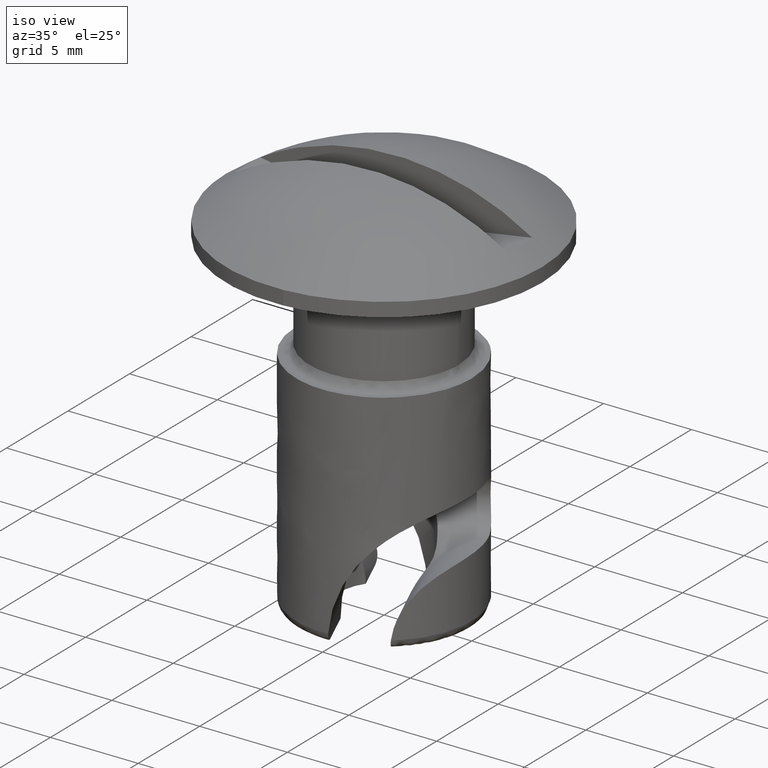
[diagram: clean part render]
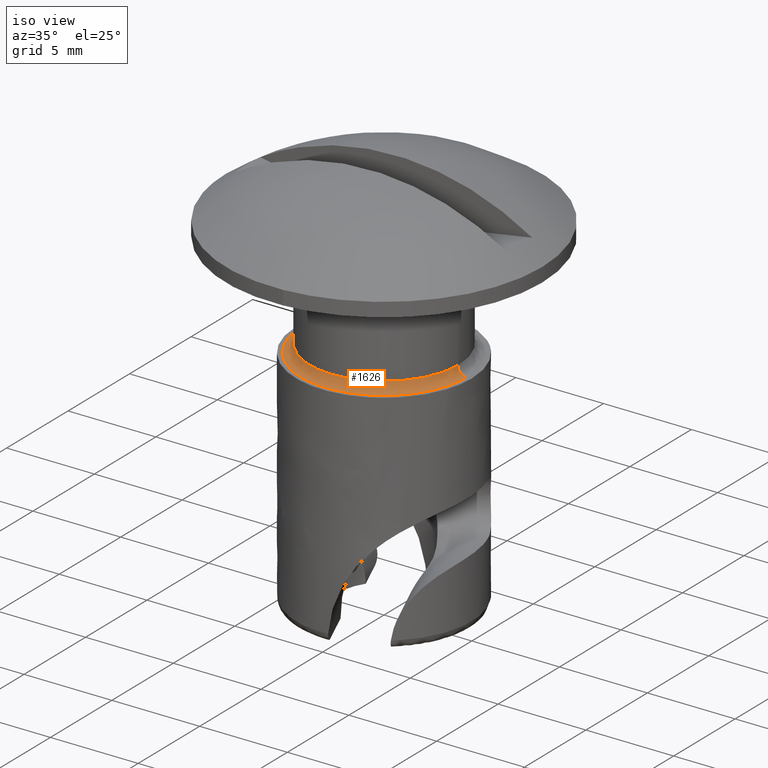
[diagram: same view with one face highlighted and labeled with its STEP entity id]
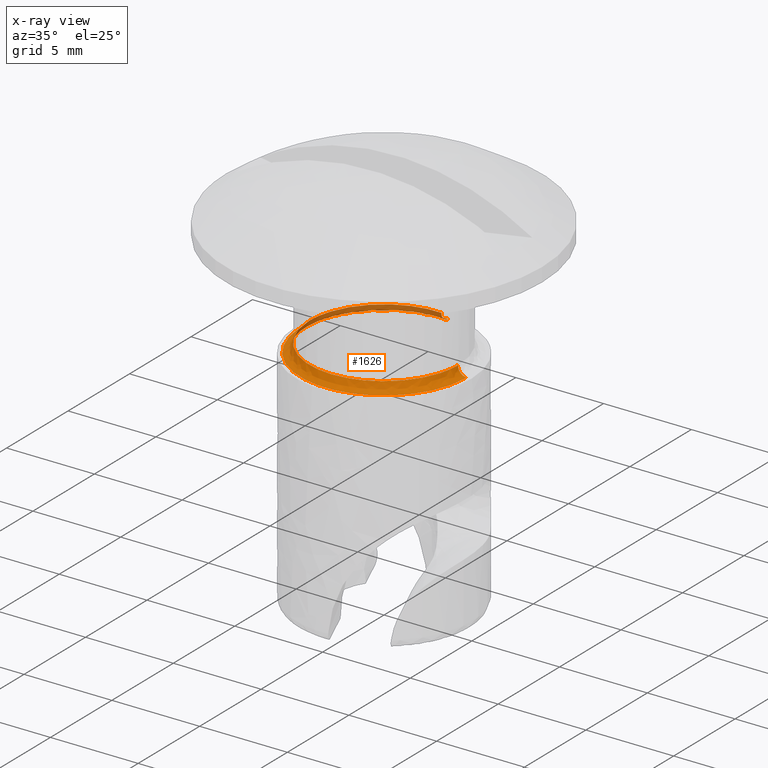
[diagram: x-ray of the same camera — body ghosted, the highlighted face saturated]
A machine part, iso view. The second image highlights one B-rep face of the part: STEP entity #1626.
The next image is the same camera in x-ray: the body ghosted, the highlighted face saturated — about 21% of this face is hidden behind the body in this view.
In plain terms, the highlighted face is a freeform B-spline surface patch.
Its self-contained STEP definition (entity closure, byte-faithful):
#66=CARTESIAN_POINT('',(-2.139199406614438,3.672373333245021,-5.499999999999996));
#67=VERTEX_POINT('',#66);
#68=CARTESIAN_POINT('',(-4.250000000000000,0.0,-5.500000000000000));
#69=VERTEX_POINT('',#68);
#70=CARTESIAN_POINT('',(-2.139199406614437,3.672373333245020,-5.499999999999997));
#71=CARTESIAN_POINT('',(-4.250000000000000,2.442807881396969,-5.500000000000000));
#72=CARTESIAN_POINT('',(-4.250000000000000,0.0,-5.500000000000000));
#80=(BOUNDED_CURVE()B_SPLINE_CURVE(2,(#70,#71,#72),.UNSPECIFIED.,.F.,.U.)B_SPLINE_CURVE_WITH_KNOTS((3,3),(0.335863057962902,0.500000000000000),.UNSPECIFIED.)CURVE()GEOMETRIC_REPRESENTATION_ITEM()RATIONAL_B_SPLINE_CURVE((0.867909378152065,0.807701610882229,1.0))REPRESENTATION_ITEM(''));
#81=EDGE_CURVE('',#67,#69,#80,.T.);
#83=CARTESIAN_POINT('',(2.345731067176967,-3.544015485359538,-5.500000000013726));
#84=VERTEX_POINT('',#83);
#85=CARTESIAN_POINT('',(-4.250000000000000,0.0,-5.500000000000000));
#86=CARTESIAN_POINT('',(-4.249999999999999,-4.249999999999999,-5.500000000000001));
#87=CARTESIAN_POINT('',(0.0,-4.250000000000000,-5.500000000000000));
#88=CARTESIAN_POINT('',(1.279104083668212,-4.250000000000000,-5.500000000000001));
#89=CARTESIAN_POINT('',(2.345731067176967,-3.544015485359538,-5.500000000013726));
#97=(BOUNDED_CURVE()B_SPLINE_CURVE(2,(#85,#86,#87,#88,#89),.UNSPECIFIED.,.F.,.U.)B_SPLINE_CURVE_WITH_KNOTS((3,2,3),(0.500000000000000,0.750000000000000,0.844612636450578),.UNSPECIFIED.)CURVE()GEOMETRIC_REPRESENTATION_ITEM()RATIONAL_B_SPLINE_CURVE((1.0,0.707106781186548,1.0,0.889154401478253,0.862207957477184))REPRESENTATION_ITEM(''));
#98=EDGE_CURVE('',#69,#84,#97,.T.);
#180=CARTESIAN_POINT('',(0.296366319195888,4.239654113821819,-5.500000000077069));
#181=VERTEX_POINT('',#180);
#182=CARTESIAN_POINT('',(0.296366319195888,4.239654113821819,-5.500000000077069));
#183=CARTESIAN_POINT('',(0.148363742467785,4.249999999999999,-5.500000000000001));
#184=CARTESIAN_POINT('',(0.0,4.250000000000000,-5.500000000000000));
#185=CARTESIAN_POINT('',(-1.147585085388668,4.250000000000000,-5.500000000000000));
#186=CARTESIAN_POINT('',(-2.139199406614437,3.672373333245020,-5.499999999999997));
#194=(BOUNDED_CURVE()B_SPLINE_CURVE(2,(#182,#183,#184,#185,#186),.UNSPECIFIED.,.F.,.U.)B_SPLINE_CURVE_WITH_KNOTS((3,2,3),(0.237833686535114,0.250000000000000,0.335863057962902),.UNSPECIFIED.)CURVE()GEOMETRIC_REPRESENTATION_ITEM()RATIONAL_B_SPLINE_CURVE((0.972879876387022,0.985746277152704,1.0,0.899405170304318,0.867909378152065))REPRESENTATION_ITEM(''));
#195=EDGE_CURVE('',#181,#67,#194,.T.);
#229=CARTESIAN_POINT('',(4.249664437865988,-0.053405669522524,-5.500000000081478));
#230=VERTEX_POINT('',#229);
#231=CARTESIAN_POINT('',(2.345731067176967,-3.544015485359538,-5.500000000013726));
#232=CARTESIAN_POINT('',(4.221399513620301,-2.302538475808908,-5.500000000037810));
#233=CARTESIAN_POINT('',(4.249664437865988,-0.053405669522524,-5.500000000081479));
#241=(BOUNDED_CURVE()B_SPLINE_CURVE(2,(#231,#232,#233),.UNSPECIFIED.,.F.,.U.)B_SPLINE_CURVE_WITH_KNOTS((3,3),(0.844612636450578,0.997784295920216),.UNSPECIFIED.)CURVE()GEOMETRIC_REPRESENTATION_ITEM()RATIONAL_B_SPLINE_CURVE((0.862207957477184,0.818583430148793,0.994854295640532))REPRESENTATION_ITEM(''));
#242=EDGE_CURVE('',#84,#230,#241,.T.);
#1523=CARTESIAN_POINT('',(0.296450484553763,4.240861501862336,-5.465231434906321));
#1524=CARTESIAN_POINT('',(0.175078967488963,4.249345779179358,-5.465231434906322));
#1525=CARTESIAN_POINT('',(0.053420878408362,4.250874660292902,-5.465231434906320));
#1526=CARTESIAN_POINT('',(-4.197453781884541,4.304295538701266,-5.465231434906320));
#1527=CARTESIAN_POINT('',(-4.250874660292902,0.053420878408362,-5.465231434906320));
#1528=CARTESIAN_POINT('',(-4.304295538701266,-4.197453781884541,-5.465231434906320));
#1529=CARTESIAN_POINT('',(-0.053420878408362,-4.250874660292902,-5.465231434906320));
#1530=CARTESIAN_POINT('',(4.197453781884541,-4.304295538701266,-5.465231434906320));
#1531=CARTESIAN_POINT('',(4.250874660292902,-0.053420878408362,-5.465231434906320));
#1532=CARTESIAN_POINT('',(0.293662626671028,4.200979903472131,-6.038768845029743));
#1533=CARTESIAN_POINT('',(0.173432502716440,4.209384393571288,-6.038768845029746));
#1534=CARTESIAN_POINT('',(0.052918501705562,4.210898896893306,-6.038768845029741));
#1535=CARTESIAN_POINT('',(-4.157980395187743,4.263817398598869,-6.038768845029742));
#1536=CARTESIAN_POINT('',(-4.210898896893306,0.052918501705563,-6.038768845029741));
#1537=CARTESIAN_POINT('',(-4.263817398598869,-4.157980395187743,-6.038768845029742));
#1538=CARTESIAN_POINT('',(-0.052918501705563,-4.210898896893306,-6.038768845029741));
#1539=CARTESIAN_POINT('',(4.157980395187743,-4.263817398598869,-6.038768845029742));
#1540=CARTESIAN_POINT('',(4.210898896893306,-0.052918501705563,-6.038768845029741));
#1541=CARTESIAN_POINT('',(0.333657222345285,4.773121120690310,-5.998789666326742));
#1542=CARTESIAN_POINT('',(0.197052678363405,4.782670237830279,-5.998789666326742));
#1543=CARTESIAN_POINT('',(0.060125595449134,4.784391004879826,-5.998789666326742));
#1544=CARTESIAN_POINT('',(-4.724265409430691,4.844516600328960,-5.998789666326741));
#1545=CARTESIAN_POINT('',(-4.784391004879826,0.060125595449134,-5.998789666326742));
#1546=CARTESIAN_POINT('',(-4.844516600328960,-4.724265409430691,-5.998789666326741));
#1547=CARTESIAN_POINT('',(-0.060125595449134,-4.784391004879826,-5.998789666326742));
#1548=CARTESIAN_POINT('',(4.724265409430691,-4.844516600328960,-5.998789666326741));
#1549=CARTESIAN_POINT('',(4.784391004879826,-0.060125595449134,-5.998789666326742));
#1557=(BOUNDED_SURFACE()B_SPLINE_SURFACE(2,2,((#1523,#1532,#1541),(#1524,#1533,#1542),(#1525,#1534,#1543),(#1526,#1535,#1544),(#1527,#1536,#1545),(#1528,#1537,#1546),(#1529,#1538,#1547),(#1530,#1539,#1548),(#1531,#1540,#1549)),.UNSPECIFIED.,.F.,.F.,.U.)B_SPLINE_SURFACE_WITH_KNOTS((3,2,2,2,3),(3,3),(0.0,0.317106277692837,8.244770780423787,16.172435283154741,24.100099785885689),(0.0,0.911187253697942),.UNSPECIFIED.)GEOMETRIC_REPRESENTATION_ITEM()RATIONAL_B_SPLINE_SURFACE(((0.889999308491947,0.584039666282875,0.889999491412450),(0.899812879610098,0.590479575557186,0.899813064547572),(0.910479803853933,0.597479476361818,0.910479990983768),(0.643806443438514,0.422481789355229,0.643806575759289),(0.910479803853933,0.597479476361818,0.910479990983768),(0.643806443438514,0.422481789355229,0.643806575759289),(0.910479803853933,0.597479476361818,0.910479990983768),(0.643806443438514,0.422481789355229,0.643806575759289),(0.910479803853933,0.597479476361818,0.910479990983768)))REPRESENTATION_ITEM('')SURFACE());
#1558=CARTESIAN_POINT('',(-4.750000000000000,0.0,-5.999999999999901));
#1559=VERTEX_POINT('',#1558);
#1560=CARTESIAN_POINT('',(0.331232945000960,4.738436950076373,-5.999999999999950));
#1561=VERTEX_POINT('',#1560);
#1562=CARTESIAN_POINT('',(-4.750000000000000,0.0,-5.999999999999901));
#1563=CARTESIAN_POINT('',(-4.750000000000000,4.750000000000000,-5.999999999999900));
#1564=CARTESIAN_POINT('',(0.0,4.750000000000000,-5.999999999999901));
#1565=CARTESIAN_POINT('',(0.165818300468939,4.750000000000000,-5.999999999999901));
#1566=CARTESIAN_POINT('',(0.331232945000959,4.738436950076373,-5.999999999999950));
#1574=(BOUNDED_CURVE()B_SPLINE_CURVE(2,(#1562,#1563,#1564,#1565,#1566),.UNSPECIFIED.,.F.,.U.)B_SPLINE_CURVE_WITH_KNOTS((3,2,3),(0.500000000000000,0.750000000000000,0.762166313469498),.UNSPECIFIED.)CURVE()GEOMETRIC_REPRESENTATION_ITEM()RATIONAL_B_SPLINE_CURVE((1.0,0.707106781186548,1.0,0.985746277147301,0.972879876377267))REPRESENTATION_ITEM(''));
#1575=EDGE_CURVE('',#1559,#1561,#1574,.T.);
#1576=ORIENTED_EDGE('',*,*,#1575,.F.);
#1577=CARTESIAN_POINT('',(4.749624959006916,-0.059688689534937,-5.999999999999950));
#1578=VERTEX_POINT('',#1577);
#1579=CARTESIAN_POINT('',(4.749624959006916,-0.059688689534937,-5.999999999999951));
#1580=CARTESIAN_POINT('',(4.690681666860084,-4.750000000000000,-5.999999999999900));
#1581=CARTESIAN_POINT('',(0.0,-4.750000000000000,-5.999999999999901));
#1582=CARTESIAN_POINT('',(-4.750000000000000,-4.750000000000000,-5.999999999999900));
#1583=CARTESIAN_POINT('',(-4.750000000000000,0.0,-5.999999999999901));
#1591=(BOUNDED_CURVE()B_SPLINE_CURVE(2,(#1579,#1580,#1581,#1582,#1583),.UNSPECIFIED.,.F.,.U.)B_SPLINE_CURVE_WITH_KNOTS((3,2,3),(0.002215704085757,0.250000000000000,0.500000000000000),.UNSPECIFIED.)CURVE()GEOMETRIC_REPRESENTATION_ITEM()RATIONAL_B_SPLINE_CURVE((0.994854295626784,0.709702639993010,1.0,0.707106781186548,1.0))REPRESENTATION_ITEM(''));
#1592=EDGE_CURVE('',#1578,#1559,#1591,.T.);
#1593=ORIENTED_EDGE('',*,*,#1592,.F.);
#1594=CARTESIAN_POINT('',(4.249664437865989,-0.053405669522524,-5.500000000081478));
#1595=CARTESIAN_POINT('',(4.249664438029161,-0.053405669506296,-5.999999998079971));
#1596=CARTESIAN_POINT('',(4.749624959006916,-0.059688689534937,-5.999999999999951));
#1604=(BOUNDED_CURVE()B_SPLINE_CURVE(2,(#1594,#1595,#1596),.UNSPECIFIED.,.F.,.U.)B_SPLINE_CURVE_WITH_KNOTS((3,3),(-1.725134642947596,-0.274865360656144),.UNSPECIFIED.)CURVE()GEOMETRIC_REPRESENTATION_ITEM()RATIONAL_B_SPLINE_CURVE((0.883342149533812,0.624617224889728,0.883342148248013))REPRESENTATION_ITEM(''));
#1605=EDGE_CURVE('',#230,#1578,#1604,.T.);
#1606=ORIENTED_EDGE('',*,*,#1605,.F.);
#1607=ORIENTED_EDGE('',*,*,#242,.F.);
#1608=ORIENTED_EDGE('',*,*,#98,.F.);
#1609=ORIENTED_EDGE('',*,*,#81,.F.);
#1610=ORIENTED_EDGE('',*,*,#195,.F.);
#1611=CARTESIAN_POINT('',(0.296366319195888,4.239654113821820,-5.500000000077069));
#1612=CARTESIAN_POINT('',(0.296366319206378,4.239654113975599,-5.999999998674336));
#1613=CARTESIAN_POINT('',(0.331232945000959,4.738436950076373,-5.999999999999950));
#1621=(BOUNDED_CURVE()B_SPLINE_CURVE(2,(#1611,#1612,#1613),.UNSPECIFIED.,.F.,.U.)B_SPLINE_CURVE_WITH_KNOTS((3,3),(-1.725134642965678,-0.274865359437108),.UNSPECIFIED.)CURVE()GEOMETRIC_REPRESENTATION_ITEM()RATIONAL_B_SPLINE_CURVE((0.863472075262444,0.610566960390528,0.863472074424425))REPRESENTATION_ITEM(''));
#1622=EDGE_CURVE('',#181,#1561,#1621,.T.);
#1623=ORIENTED_EDGE('',*,*,#1622,.T.);
#1624=EDGE_LOOP('',(#1576,#1593,#1606,#1607,#1608,#1609,#1610,#1623));
#1625=FACE_OUTER_BOUND('',#1624,.T.);
#1626=ADVANCED_FACE('',(#1625),#1557,.F.);